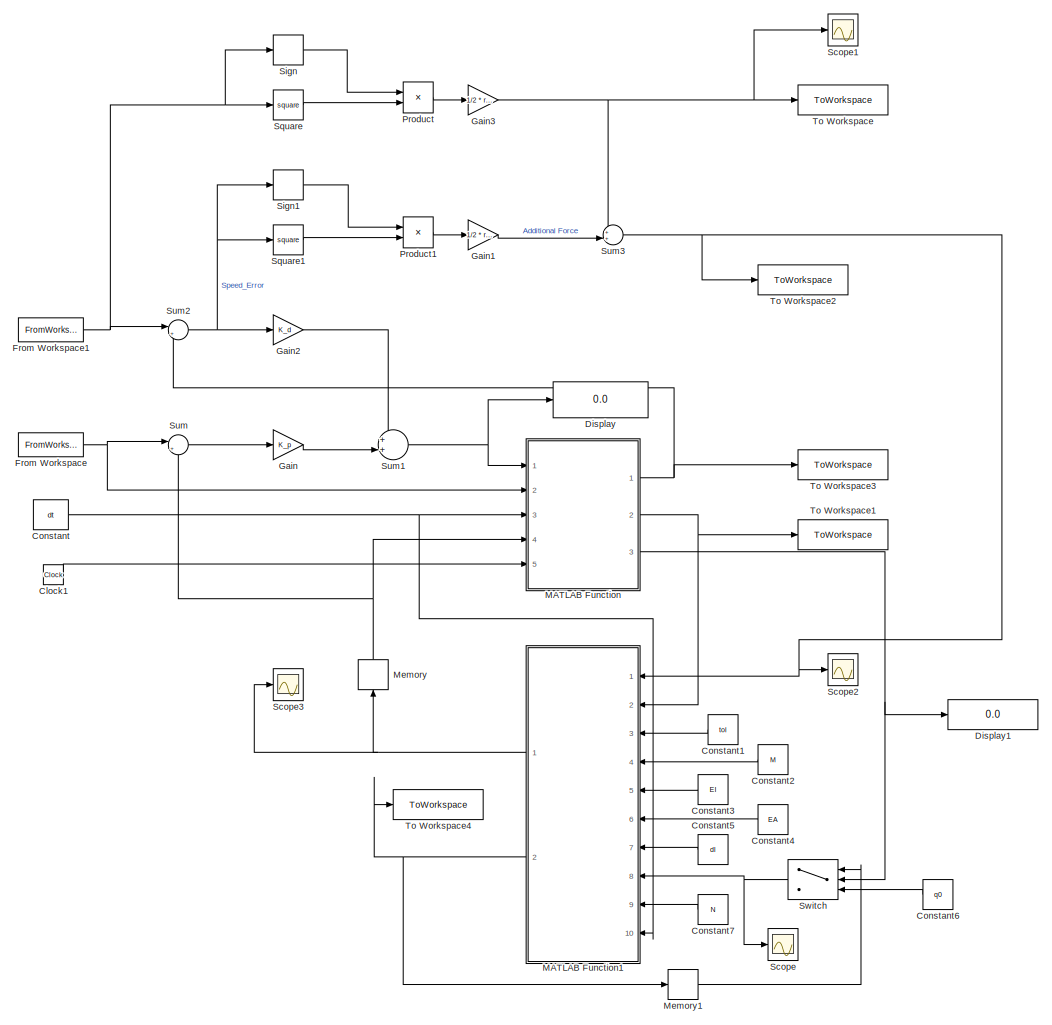
[diagram: root canvas - part 1/2, most of the canvas]
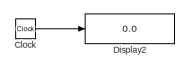
[diagram: root canvas - part 2/2, middle right region]
MODEL slx_3dfee8331c88
KIND model
CONFIG AbsTol = auto
CONFIG EnableMultiTasking = off
CONFIG FixedStep = dt
CONFIG MaxStep = auto
CONFIG MinStep = auto
CONFIG RelTol = 1e-3
CONFIG SampleTimeConstraint = Unconstrained
CONFIG SolverName = FixedStepAuto
CONFIG StartTime = 0.0
CONFIG StopTime = end_time
BLOCK [Clock] Clock
BLOCK [Clock] Clock1
BLOCK [Constant] Constant
  Value = dt
BLOCK [Constant] Constant1
  Value = tol
BLOCK [Constant] Constant2
  Value = M
BLOCK [Constant] Constant3
  Value = EI
BLOCK [Constant] Constant4
  Value = EA
BLOCK [Constant] Constant5
  Value = dl
BLOCK [Constant] Constant6
  Value = q0
BLOCK [Constant] Constant7
  Value = N
BLOCK [Display] Display
  Decimation = 1
  Ports = [1]
BLOCK [Display] Display1
  Decimation = 1
  Ports = [1]
BLOCK [Display] Display2
  Decimation = 1
  Ports = [1]
BLOCK [FromWorkspace] From Workspace
  VariableName = position_hist
BLOCK [FromWorkspace] From Workspace1
  VariableName = refer_Velo
BLOCK [Gain] Gain
  Gain = K_p
BLOCK [Gain] Gain1
  Gain = 1/2 * rho_blood * Area * Cd
BLOCK [Gain] Gain2
  Gain = K_d
BLOCK [Gain] Gain3
  Gain = 1/2 * rho_blood * Area * Cd
  NameLocation = top
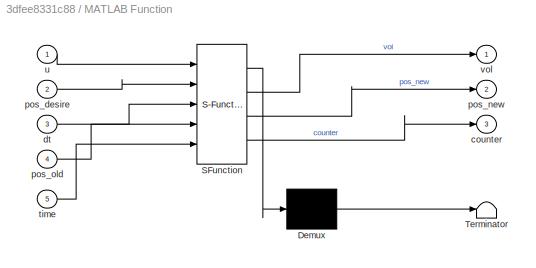
BLOCK [SubSystem] MATLAB Function
  ErrorFcn = Stateflow.Translate.translate
  PermitHierarchicalResolution = ExplicitOnly
  Ports = [5, 3]
  RequestExecContextInheritance = off
  SFBlockType = MATLAB Function
  TreatAsAtomicUnit = on
BLOCK [Demux] MATLAB Function/ Demux 
  Outputs = 1
  Ports = [1, 1]
BLOCK [S-Function] MATLAB Function/ SFunction 
  EnableBusSupport = on
  FunctionName = sf_sfun
  PortCounts = [5 4]
  Ports = [5, 4]
  SFcnIsStateOwnerBlock = off
  SFunctionDeploymentMode = off
  Tag = Stateflow S-Function 2
BLOCK [Terminator] MATLAB Function/ Terminator 
BLOCK [Outport] MATLAB Function/counter
  Port = 3
BLOCK [Inport] MATLAB Function/dt
  Port = 3
BLOCK [Inport] MATLAB Function/pos_desire
  Port = 2
BLOCK [Outport] MATLAB Function/pos_new
  Port = 2
BLOCK [Inport] MATLAB Function/pos_old
  Port = 4
BLOCK [Inport] MATLAB Function/time
  Port = 5
BLOCK [Inport] MATLAB Function/u
BLOCK [Outport] MATLAB Function/vol
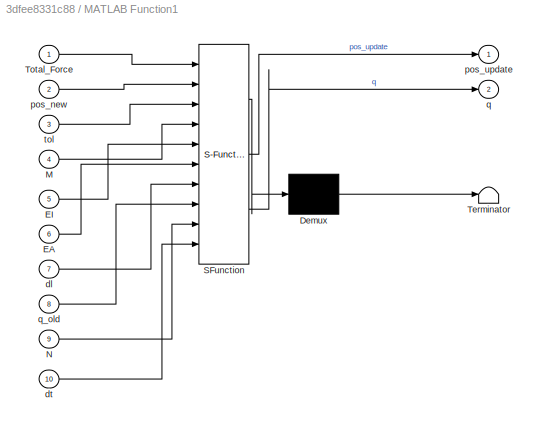
BLOCK [SubSystem] MATLAB Function1
  ErrorFcn = Stateflow.Translate.translate
  PermitHierarchicalResolution = ExplicitOnly
  Ports = [10, 2]
  RequestExecContextInheritance = off
  SFBlockType = MATLAB Function
  TreatAsAtomicUnit = on
BLOCK [Demux] MATLAB Function1/ Demux 
  Outputs = 1
  Ports = [1, 1]
BLOCK [S-Function] MATLAB Function1/ SFunction 
  EnableBusSupport = on
  FunctionName = sf_sfun
  PortCounts = [10 3]
  Ports = [10, 3]
  SFcnIsStateOwnerBlock = off
  SFunctionDeploymentMode = off
  Tag = Stateflow S-Function 1
BLOCK [Terminator] MATLAB Function1/ Terminator 
BLOCK [Inport] MATLAB Function1/EA
  Port = 6
BLOCK [Inport] MATLAB Function1/EI
  Port = 5
BLOCK [Inport] MATLAB Function1/M
  Port = 4
BLOCK [Inport] MATLAB Function1/N
  Port = 9
BLOCK [Inport] MATLAB Function1/Total_Force
BLOCK [Inport] MATLAB Function1/dl
  Port = 7
BLOCK [Inport] MATLAB Function1/dt
  Port = 10
BLOCK [Inport] MATLAB Function1/pos_new
  Port = 2
BLOCK [Outport] MATLAB Function1/pos_update
BLOCK [Outport] MATLAB Function1/q
  Port = 2
BLOCK [Inport] MATLAB Function1/q_old
  Port = 8
BLOCK [Inport] MATLAB Function1/tol
  Port = 3
BLOCK [Memory] Memory
  NameLocation = right
BLOCK [Memory] Memory1
BLOCK [Product] Product
  Ports = [2, 1]
BLOCK [Product] Product1
  Ports = [2, 1]
BLOCK [Scope] Scope
  Floating = off
  NumInputPorts = 1
  Ports = [1]
  ScopeSpecificationString = Simulink.scopes.TimeScopeBlockCfg('CurrentConfiguration', extmgr.ConfigurationSet(extmgr.Configuration('Core','General UI',true),extmgr.Configuration('Core','Source UI',true),extmgr.Configuration('Sources','WiredSimulink',true,'DataLoggingVariableName','ScopeData1'),extmgr.Configuration('Visuals','Time Domain',true,'SerializedDisplays',{struct('MinYLimReal','-10.00000','MaxYLimReal','10.00000','YL...<+2630ch>
BLOCK [Scope] Scope1
  Floating = off
  NumInputPorts = 1
  Ports = [1]
  ScopeSpecificationString = Simulink.scopes.TimeScopeBlockCfg('CurrentConfiguration', extmgr.ConfigurationSet(extmgr.Configuration('Core','General UI',true),extmgr.Configuration('Core','Source UI',true),extmgr.Configuration('Sources','WiredSimulink',true,'DataLoggingVariableName','ScopeData1'),extmgr.Configuration('Visuals','Time Domain',true,'SerializedDisplays',{struct('MinYLimReal','-0.000047','MaxYLimReal','0.000047','YL...<+1497ch>
BLOCK [Scope] Scope2
  Floating = off
  NumInputPorts = 1
  Ports = [1]
  ScopeSpecificationString = Simulink.scopes.TimeScopeBlockCfg('CurrentConfiguration', extmgr.ConfigurationSet(extmgr.Configuration('Core','General UI',true),extmgr.Configuration('Core','Source UI',true),extmgr.Configuration('Sources','WiredSimulink',true,'DataLoggingVariableName','ScopeData2'),extmgr.Configuration('Visuals','Time Domain',true,'SerializedDisplays',{struct('MinYLimReal','-0.43154','MaxYLimReal','0.0489','YLabe...<+1402ch>
BLOCK [Scope] Scope3
  Floating = off
  NumInputPorts = 1
  Ports = [1]
  ScopeSpecificationString = Simulink.scopes.TimeScopeBlockCfg('CurrentConfiguration', extmgr.ConfigurationSet(extmgr.Configuration('Core','General UI',true),extmgr.Configuration('Core','Source UI',true),extmgr.Configuration('Sources','WiredSimulink',true,'DataLoggingVariableName','ScopeData1'),extmgr.Configuration('Visuals','Time Domain',true,'SerializedDisplays',{struct('MinYLimReal','0.05278','MaxYLimReal','0.22524','YLabe...<+1448ch>
BLOCK [Signum] Sign
BLOCK [Signum] Sign1
BLOCK [Math] Square
  Operator = square
  Ports = [1, 1]
BLOCK [Math] Square1
  Operator = square
  Ports = [1, 1]
BLOCK [Sum] Sum
  Inputs = |+-
  Ports = [2, 1]
BLOCK [Sum] Sum1
  Inputs = ++|
  Ports = [2, 1]
BLOCK [Sum] Sum2
  Inputs = |+-
  Ports = [2, 1]
BLOCK [Sum] Sum3
  Inputs = ++|
  Ports = [2, 1]
BLOCK [Switch] Switch
  Criteria = u2 > Threshold
  InputSameDT = off
  SaturateOnIntegerOverflow = off
  Threshold = 2
BLOCK [ToWorkspace] To Workspace
  FixptAsFi = on
  MaxDataPoints = inf
  Ports = [1]
  SampleTime = -1
  SaveFormat = Structure With Time
  VariableName = Force_Refer
BLOCK [ToWorkspace] To Workspace1
  FixptAsFi = on
  MaxDataPoints = inf
  Ports = [1]
  SampleTime = -1
  SaveFormat = Timeseries
  VariableName = real_Posi
BLOCK [ToWorkspace] To Workspace2
  FixptAsFi = on
  MaxDataPoints = inf
  Ports = [1]
  SampleTime = -1
  SaveFormat = Timeseries
  VariableName = Total_Force
BLOCK [ToWorkspace] To Workspace3
  FixptAsFi = on
  MaxDataPoints = inf
  Ports = [1]
  SampleTime = -1
  SaveFormat = Timeseries
  VariableName = real_Velo
BLOCK [ToWorkspace] To Workspace4
  FixptAsFi = on
  MaxDataPoints = inf
  Ports = [1]
  SampleTime = -1
  SaveFormat = Timeseries
  VariableName = q
LINE Clock1:1 -> MATLAB Function:5
LINE Clock:1 -> Display2:1
LINE Constant1:1 -> MATLAB Function1:3
LINE Constant2:1 -> MATLAB Function1:4
LINE Constant3:1 -> MATLAB Function1:5
LINE Constant4:1 -> MATLAB Function1:6
LINE Constant5:1 -> MATLAB Function1:7
LINE Constant6:1 -> Switch:3
LINE Constant7:1 -> MATLAB Function1:9
NET Constant:1 -> MATLAB Function1:10, MATLAB Function:3
NET From Workspace1:1 -> Sign:1, Square:1, Sum2:1
NET From Workspace:1 -> MATLAB Function:2, Sum:1
LINE Gain1:1 -> Sum3:2
LINE Gain2:1 -> Sum1:1
NET Gain3:1 -> Scope1:1, Sum3:1, To Workspace:1
LINE Gain:1 -> Sum1:2
NET MATLAB Function1:1 -> Memory:1, Scope3:1
NET MATLAB Function1:2 -> Memory1:1, To Workspace4:1
NET MATLAB Function:1 -> Sum2:2, To Workspace3:1
NET MATLAB Function:2 -> MATLAB Function1:2, To Workspace1:1
NET MATLAB Function:3 -> Display1:1, Switch:2
LINE Memory1:1 -> Switch:1
NET Memory:1 -> MATLAB Function:4, Sum:2
LINE Product1:1 -> Gain1:1
LINE Product:1 -> Gain3:1
LINE Sign1:1 -> Product1:1
LINE Sign:1 -> Product:1
LINE Square1:1 -> Product1:2
LINE Square:1 -> Product:2
NET Sum1:1 -> Display:1, MATLAB Function:1
NET Sum2:1 -> Gain2:1, Sign1:1, Square1:1
NET Sum3:1 -> MATLAB Function1:1, Scope2:1, To Workspace2:1
LINE Sum:1 -> Gain:1
NET Switch:1 -> MATLAB Function1:8, Scope:1
note: NET lines group one-source signal fan-out (src -> all destinations, sorted); 1:1 wires keep LINE
CHART MATLAB Function1 states=1 transitions=1
  STATE_LABEL 'eML_blk_kernel()'
  STATE_LABEL "SCRIPT:\nfunction [pos_update,q] = DER(Total_Force,pos_new,tol,M,EI,EA,dl,q_old,N,dt)\n\nEx_force = zeros(2*N,1);\n\n    q = q_old; % Guess\n    q(1:2) = pos_new';\n    u = (q - q_old) / dt;\n\n    err = 10 * tol;\n\n    % Newton Raphson\n    while err > tol\n\n    % Inertia \n    f = M/dt * ((q - q_old) / dt - u);\n    J = M/ dt^2;\n\n    % Elastic forces \n    % Linear Spring \n    for k = 1: N-1\n        xk = q(2*k...<+1486ch>"
CHART MATLAB Function states=1 transitions=1
  STATE_LABEL 'eML_blk_kernel()'
  STATE_LABEL 'SCRIPT:\nfunction [vol,pos_new,counter] = Robot_system(u,pos_desire,dt,pos_old,time)\npos_new = pos_desire + u;\n\nvol = (pos_new - pos_old)/dt;\n\ncounter = time*(1/dt) +1;\n% counter = counter + 1;'
CHART  states=0 transitions=0
CHART  states=0 transitions=0
